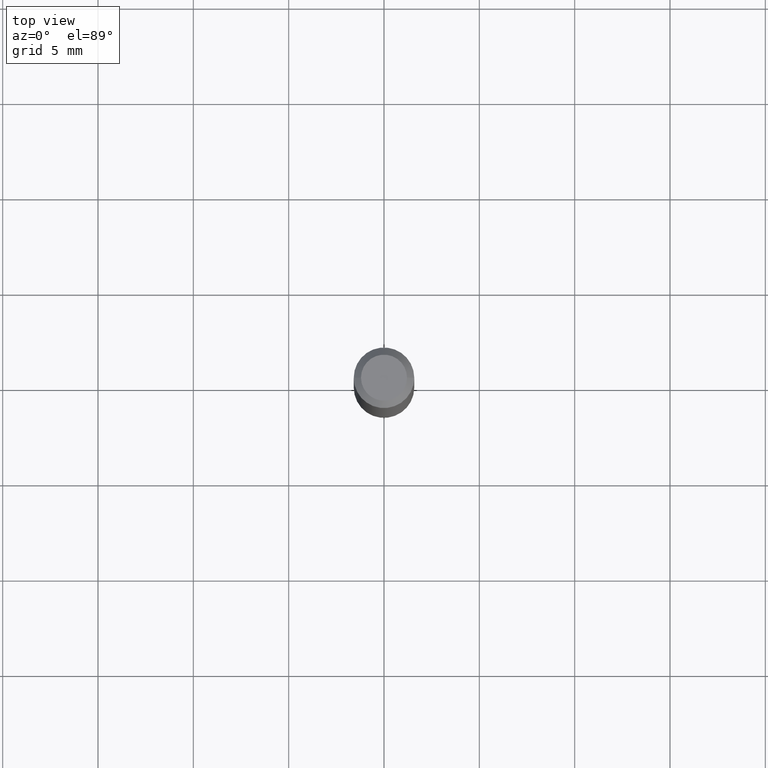
[diagram: clean part render]
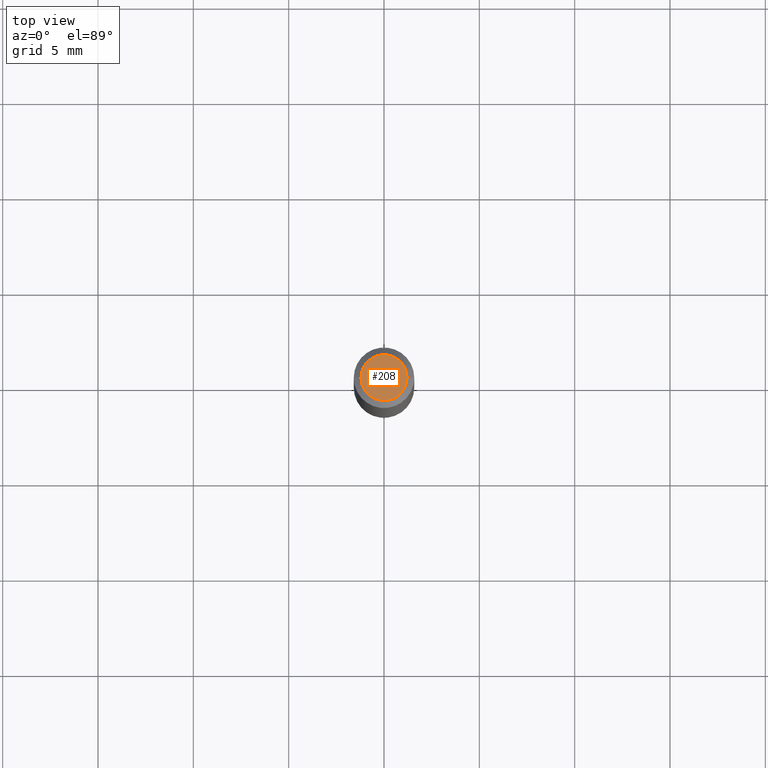
[diagram: same view with one face highlighted and labeled with its STEP entity id]
A machine part, top view. The second image highlights one B-rep face of the part: STEP entity #208.
In plain terms, the highlighted planar face has unit normal (0, -0, -1).
Its self-contained STEP definition (entity closure, byte-faithful):
#13 = DIRECTION ( 'NONE',  ( 1.000000000000000000, -6.982962677686267499E-15, 4.852736867747366768E-29 ) ) ;
#14 = AXIS2_PLACEMENT_3D ( 'NONE', #225, #28, #289 ) ;
#28 = DIRECTION ( 'NONE',  ( -2.445468806185136597E-29, 3.491481338843145583E-15, 1.000000000000000000 ) ) ;
#34 = EDGE_CURVE ( 'NONE', #266, #100, #443, .T. ) ;
#35 = ORIENTED_EDGE ( 'NONE', *, *, #34, .T. ) ;
#36 = EDGE_LOOP ( 'NONE', ( #142, #35 ) ) ;
#43 = PLANE ( 'NONE',  #393 ) ;
#100 = VERTEX_POINT ( 'NONE', #105 ) ;
#105 = CARTESIAN_POINT ( 'NONE',  ( -0.04749999999999999362, 3.578768372314206562E-16, -2.310480929501438287E-16 ) ) ;
#142 = ORIENTED_EDGE ( 'NONE', *, *, #461, .T. ) ;
#161 = CIRCLE ( 'NONE', #222, 0.04749999999999999362 ) ;
#195 = DIRECTION ( 'NONE',  ( -1.000000000000000000, 6.982962677686265922E-15, -4.876176775795935793E-29 ) ) ;
#208 = ADVANCED_FACE ( 'NONE', ( #367 ), #43, .F. ) ;
#222 = AXIS2_PLACEMENT_3D ( 'NONE', #391, #397, #13 ) ;
#225 = CARTESIAN_POINT ( 'NONE',  ( 5.650209040381348270E-45, -8.067001049107153434E-31, -2.310480929501414128E-16 ) ) ;
#235 = CARTESIAN_POINT ( 'NONE',  ( 3.316907271900976096E-16, 0.04749999999999999362, -2.813694100701201521E-16 ) ) ;
#266 = VERTEX_POINT ( 'NONE', #337 ) ;
#289 = DIRECTION ( 'NONE',  ( 1.000000000000000000, -6.982962677686267499E-15, 4.852736867747366768E-29 ) ) ;
#329 = DIRECTION ( 'NONE',  ( 2.438088387897960049E-29, -3.491481338843145188E-15, -1.000000000000000000 ) ) ;
#337 = CARTESIAN_POINT ( 'NONE',  ( 0.04749999999999999362, -4.035134999187582567E-16, -2.310480929501388490E-16 ) ) ;
#367 = FACE_OUTER_BOUND ( 'NONE', #36, .T. ) ;
#391 = CARTESIAN_POINT ( 'NONE',  ( 5.650209040381348270E-45, -8.067001049107153434E-31, -2.310480929501414128E-16 ) ) ;
#393 = AXIS2_PLACEMENT_3D ( 'NONE', #235, #329, #195 ) ;
#397 = DIRECTION ( 'NONE',  ( -2.445468806185136597E-29, 3.491481338843145583E-15, 1.000000000000000000 ) ) ;
#443 = CIRCLE ( 'NONE', #14, 0.04749999999999999362 ) ;
#461 = EDGE_CURVE ( 'NONE', #100, #266, #161, .T. ) ;